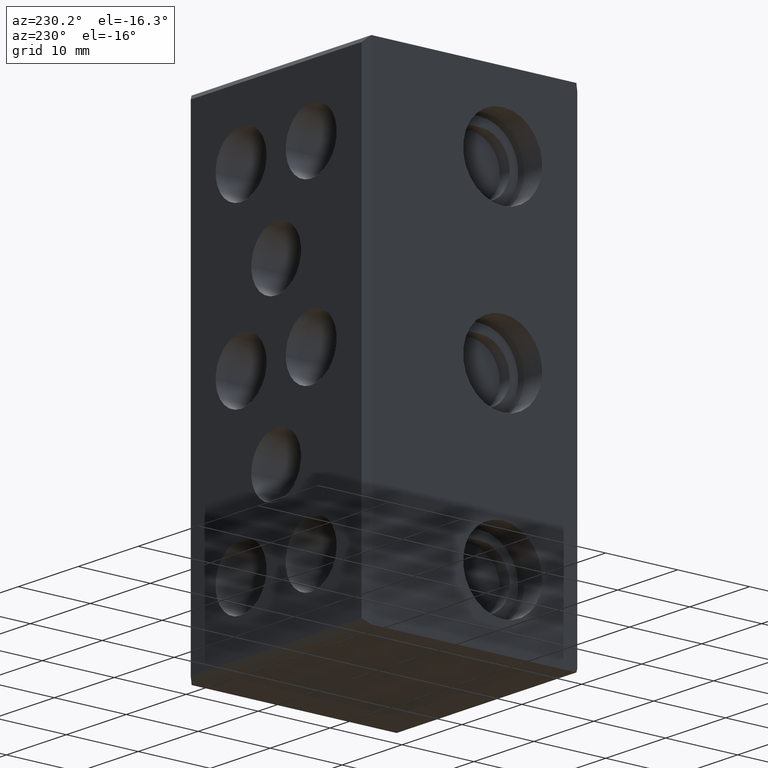
[diagram: clean part render]
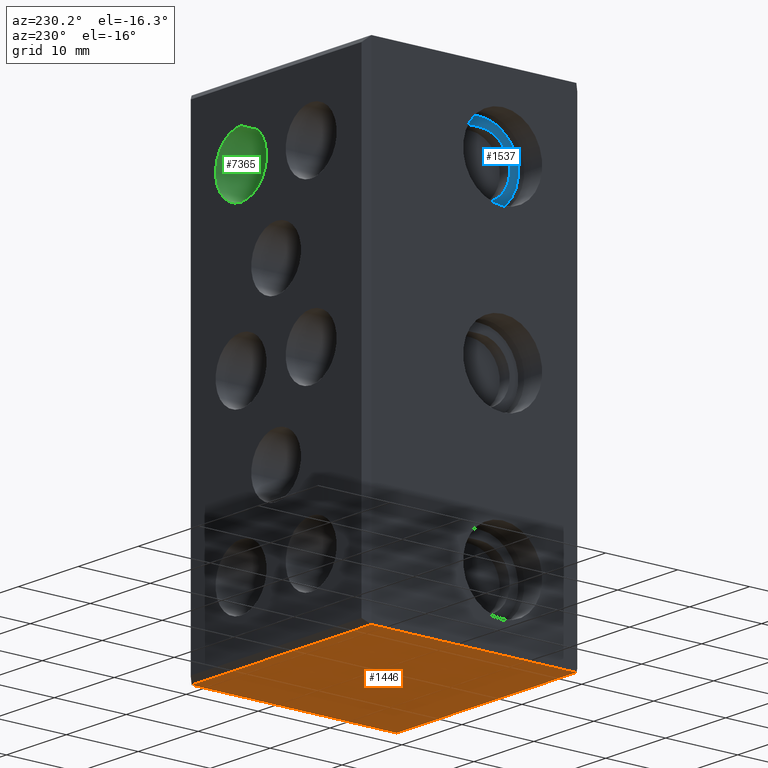
[diagram: same view with three faces highlighted in distinct colors, each labeled with its STEP entity id]
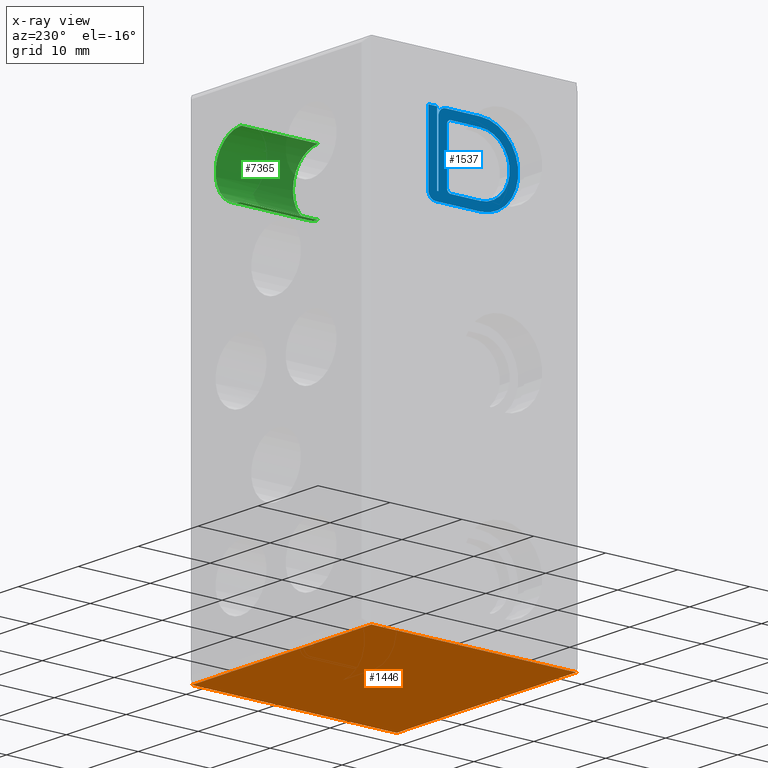
[diagram: x-ray of the same camera — body ghosted, the three highlighted faces saturated]
A machine part, auxiliary view with three faces highlighted in distinct colors.
The next image is the same camera in x-ray (body ghosted, the three faces saturated) — at least one of them is partly hidden behind the body in this view.
Their STEP definitions:

[orange] entity #1446 — the highlighted planar face has unit normal (0, 0, 1).
#1093 = CARTESIAN_POINT ( 'NONE',  ( -8.951284751764104900E-016, 29.25000000000000000, -1.409462824231156100E-014 ) ) ;
#1095 = CARTESIAN_POINT ( 'NONE',  ( 3.388131789017098400E-017, 0.7500000000000006700, 2.710505431213756200E-017 ) ) ;
#1109 = CARTESIAN_POINT ( 'NONE',  ( 30.00000000000000400, 0.7500000000000021100, -1.334923924872790200E-015 ) ) ;
#1112 = CARTESIAN_POINT ( 'NONE',  ( 30.00000000000000400, 29.25000000000000000, -1.924458856161770400E-014 ) ) ;
#1446 = ADVANCED_FACE ( 'NONE', ( #2818 ), #2847, .F. ) ;
#1693 = EDGE_CURVE ( 'NONE', #9193, #9179, #1929, .T. ) ;
#1753 = EDGE_CURVE ( 'NONE', #9178, #9193, #2157, .T. ) ;
#1797 = EDGE_CURVE ( 'NONE', #9184, #9179, #2265, .T. ) ;
#1808 = EDGE_CURVE ( 'NONE', #9178, #9184, #2322, .T. ) ;
#1929 = LINE ( 'NONE', #1931, #8693 ) ;
#1931 = CARTESIAN_POINT ( 'NONE',  ( 0.0000000000000000000, 29.25000000000000000, 0.0000000000000000000 ) ) ;
#1972 = DIRECTION ( 'NONE',  ( -1.000000000000000000, -0.0000000000000000000, 0.0000000000000000000 ) ) ;
#2152 = CARTESIAN_POINT ( 'NONE',  ( 30.00000000000000000, 30.00000000000000000, 0.0000000000000000000 ) ) ;
#2157 = LINE ( 'NONE', #2152, #7718 ) ;
#2159 = DIRECTION ( 'NONE',  ( -0.0000000000000000000, 1.000000000000000000, 0.0000000000000000000 ) ) ;
#2256 = CARTESIAN_POINT ( 'NONE',  ( 0.0000000000000000000, 30.00000000000000000, 0.0000000000000000000 ) ) ;
#2265 = LINE ( 'NONE', #2256, #7789 ) ;
#2274 = DIRECTION ( 'NONE',  ( 0.0000000000000000000, 1.000000000000000000, 0.0000000000000000000 ) ) ;
#2307 = CARTESIAN_POINT ( 'NONE',  ( 8.033683002406635800E-015, 0.7500000000000007800, -1.084202172485504400E-016 ) ) ;
#2314 = DIRECTION ( 'NONE',  ( -1.000000000000000000, -0.0000000000000000000, -0.0000000000000000000 ) ) ;
#2322 = LINE ( 'NONE', #2307, #7786 ) ;
#2815 = DIRECTION ( 'NONE',  ( 1.000000000000000000, 0.0000000000000000000, -0.0000000000000000000 ) ) ;
#2818 = FACE_OUTER_BOUND ( 'NONE', #4356, .T. ) ;
#2820 = DIRECTION ( 'NONE',  ( 0.0000000000000000000, 0.0000000000000000000, 1.000000000000000000 ) ) ;
#2847 = PLANE ( 'NONE',  #6781 ) ;
#2848 = CARTESIAN_POINT ( 'NONE',  ( 0.0000000000000000000, 30.00000000000000000, 0.0000000000000000000 ) ) ;
#4356 = EDGE_LOOP ( 'NONE', ( #5586, #5564, #5565, #5483 ) ) ;
#5483 = ORIENTED_EDGE ( 'NONE', *, *, #1753, .F. ) ;
#5564 = ORIENTED_EDGE ( 'NONE', *, *, #1797, .T. ) ;
#5565 = ORIENTED_EDGE ( 'NONE', *, *, #1693, .F. ) ;
#5586 = ORIENTED_EDGE ( 'NONE', *, *, #1808, .T. ) ;
#6781 = AXIS2_PLACEMENT_3D ( 'NONE', #2848, #2820, #2815 ) ;
#7718 = VECTOR ( 'NONE', #2159, 1000.000000000000000 ) ;
#7786 = VECTOR ( 'NONE', #2314, 1000.000000000000000 ) ;
#7789 = VECTOR ( 'NONE', #2274, 1000.000000000000000 ) ;
#8693 = VECTOR ( 'NONE', #1972, 1000.000000000000000 ) ;
#9178 = VERTEX_POINT ( 'NONE', #1109 ) ;
#9179 = VERTEX_POINT ( 'NONE', #1093 ) ;
#9184 = VERTEX_POINT ( 'NONE', #1095 ) ;
#9193 = VERTEX_POINT ( 'NONE', #1112 ) ;

[blue] entity #1537 — the highlighted planar face has unit normal (1, 0, -0).
#235 = EDGE_CURVE ( 'NONE', #9266, #9223, #3739, .T. ) ;
#1149 = CARTESIAN_POINT ( 'NONE',  ( 3.750000000000173200, 11.00000000000000000, 51.39999999999999900 ) ) ;
#1159 = CARTESIAN_POINT ( 'NONE',  ( 3.750000000000173200, 15.60000000000000300, 59.10000000000000900 ) ) ;
#1163 = CARTESIAN_POINT ( 'NONE',  ( 3.750000000000173200, 15.10000000000000000, 59.60000000000000900 ) ) ;
#1170 = CARTESIAN_POINT ( 'NONE',  ( 3.750000000000173200, 17.19999999999999900, 50.20000000000001000 ) ) ;
#1172 = CARTESIAN_POINT ( 'NONE',  ( 3.750000000000173200, 15.10000000000000300, 51.40000000000000600 ) ) ;
#1173 = CARTESIAN_POINT ( 'NONE',  ( 3.750000000000173200, 11.00000000000000000, 60.80000000000001100 ) ) ;
#1186 = CARTESIAN_POINT ( 'NONE',  ( 3.750000000000173200, 18.19999999999999900, 51.20000000000001000 ) ) ;
#1187 = CARTESIAN_POINT ( 'NONE',  ( 3.750000000000173200, 15.80000000000000100, 60.80000000000000400 ) ) ;
#1188 = CARTESIAN_POINT ( 'NONE',  ( 3.750000000000173200, 11.00000000000000000, 59.60000000000000100 ) ) ;
#1191 = CARTESIAN_POINT ( 'NONE',  ( 3.750000000000173200, 18.19999999999999900, 60.80000000000000400 ) ) ;
#1202 = CARTESIAN_POINT ( 'NONE',  ( 3.750000000000173200, 11.00000000000000000, 50.19999999999999600 ) ) ;
#1205 = CARTESIAN_POINT ( 'NONE',  ( 3.750000000000173200, 15.60000000000000300, 51.90000000000000600 ) ) ;
#1249 = CARTESIAN_POINT ( 'NONE',  ( 3.750000000000173200, 16.80000000000000100, 59.80000000000000400 ) ) ;
#1257 = CARTESIAN_POINT ( 'NONE',  ( 3.750000000000173200, 17.00000000000000000, 60.80000000000000400 ) ) ;
#1262 = CARTESIAN_POINT ( 'NONE',  ( 3.750000000000173200, 16.80000000000000100, 51.39999999999999900 ) ) ;
#1263 = CARTESIAN_POINT ( 'NONE',  ( 3.750000000000173200, 17.00000000000000000, 51.39999999999999900 ) ) ;
#1537 = ADVANCED_FACE ( 'NONE', ( #3276, #3255 ), #3282, .F. ) ;
#1771 = EDGE_CURVE ( 'NONE', #9223, #9257, #7706, .T. ) ;
#1778 = EDGE_CURVE ( 'NONE', #9224, #9259, #2184, .T. ) ;
#1779 = EDGE_CURVE ( 'NONE', #9258, #9235, #2203, .T. ) ;
#1825 = EDGE_CURVE ( 'NONE', #9274, #9273, #2354, .T. ) ;
#1832 = EDGE_CURVE ( 'NONE', #9263, #9275, #2374, .T. ) ;
#1846 = EDGE_CURVE ( 'NONE', #9248, #9244, #2403, .T. ) ;
#1848 = EDGE_CURVE ( 'NONE', #9275, #9274, #2390, .T. ) ;
#1849 = EDGE_CURVE ( 'NONE', #9241, #9224, #7872, .T. ) ;
#1853 = EDGE_CURVE ( 'NONE', #9244, #9266, #7862, .T. ) ;
#1855 = EDGE_CURVE ( 'NONE', #9268, #9241, #2435, .T. ) ;
#1858 = EDGE_CURVE ( 'NONE', #9235, #9268, #7861, .T. ) ;
#1860 = EDGE_CURVE ( 'NONE', #9272, #9248, #7852, .T. ) ;
#1861 = EDGE_CURVE ( 'NONE', #9257, #9263, #2461, .T. ) ;
#1864 = EDGE_CURVE ( 'NONE', #9273, #9272, #2505, .T. ) ;
#1869 = EDGE_CURVE ( 'NONE', #9259, #9258, #7843, .T. ) ;
#2184 = LINE ( 'NONE', #2216, #7743 ) ;
#2189 = CARTESIAN_POINT ( 'NONE',  ( 3.750000000000173200, 17.19999999999999900, 51.20000000000001000 ) ) ;
#2190 = DIRECTION ( 'NONE',  ( 1.000000000000000000, 0.0000000000000000000, -1.224646799147353200E-016 ) ) ;
#2203 = LINE ( 'NONE', #2205, #7709 ) ;
#2205 = CARTESIAN_POINT ( 'NONE',  ( 3.750000000000173200, 11.00000000000000000, 51.39999999999999900 ) ) ;
#2206 = DIRECTION ( 'NONE',  ( 0.0000000000000000000, 1.000000000000000000, 1.692413147294444000E-015 ) ) ;
#2216 = CARTESIAN_POINT ( 'NONE',  ( 3.750000000000173200, 11.00000000000000000, 59.60000000000000100 ) ) ;
#2217 = DIRECTION ( 'NONE',  ( -0.0000000000000000000, -1.000000000000000000, -1.692413147294446200E-015 ) ) ;
#2224 = DIRECTION ( 'NONE',  ( 0.0000000000000000000, 0.0000000000000000000, -1.000000000000000000 ) ) ;
#2348 = CARTESIAN_POINT ( 'NONE',  ( 3.750000000000173200, 17.00000000000000000, 51.39999999999999900 ) ) ;
#2349 = CARTESIAN_POINT ( 'NONE',  ( 3.750000000000173200, 18.19999999999999900, 60.80000000000000400 ) ) ;
#2352 = DIRECTION ( 'NONE',  ( 0.0000000000000000000, -1.000000000000000000, 0.0000000000000000000 ) ) ;
#2354 = LINE ( 'NONE', #2348, #7803 ) ;
#2355 = DIRECTION ( 'NONE',  ( 0.0000000000000000000, -1.000000000000000000, 0.0000000000000000000 ) ) ;
#2374 = LINE ( 'NONE', #2349, #7806 ) ;
#2390 = LINE ( 'NONE', #2395, #7860 ) ;
#2394 = CARTESIAN_POINT ( 'NONE',  ( 3.750000000000173200, 15.80000000000000100, 60.80000000000000400 ) ) ;
#2395 = CARTESIAN_POINT ( 'NONE',  ( 3.750000000000173200, 17.00000000000000000, 60.80000000000000400 ) ) ;
#2400 = DIRECTION ( 'NONE',  ( 0.0000000000000000000, -1.000000000000000000, 1.445602896647338500E-015 ) ) ;
#2403 = LINE ( 'NONE', #2394, #7858 ) ;
#2428 = CARTESIAN_POINT ( 'NONE',  ( 3.750000000000173200, 18.19999999999999900, 51.20000000000001000 ) ) ;
#2431 = DIRECTION ( 'NONE',  ( 1.000000000000000000, 0.0000000000000000000, -1.224646799147353200E-016 ) ) ;
#2435 = LINE ( 'NONE', #2468, #7836 ) ;
#2436 = DIRECTION ( 'NONE',  ( 0.0000000000000000000, 0.0000000000000000000, 1.000000000000000000 ) ) ;
#2437 = DIRECTION ( 'NONE',  ( 0.0000000000000000000, 0.0000000000000000000, -1.000000000000000000 ) ) ;
#2439 = DIRECTION ( 'NONE',  ( 1.000000000000000000, 0.0000000000000000000, -1.224646799147353200E-016 ) ) ;
#2440 = DIRECTION ( 'NONE',  ( 0.0000000000000000000, 0.0000000000000000000, 1.000000000000000000 ) ) ;
#2445 = DIRECTION ( 'NONE',  ( -8.182657905550967200E-017, 0.0000000000000000000, -1.000000000000000000 ) ) ;
#2447 = CARTESIAN_POINT ( 'NONE',  ( 3.750000000000173200, 15.10000000000000100, 59.10000000000000900 ) ) ;
#2451 = CARTESIAN_POINT ( 'NONE',  ( 3.750000000000173200, 15.10000000000000100, 51.90000000000000600 ) ) ;
#2453 = DIRECTION ( 'NONE',  ( 0.0000000000000000000, 0.0000000000000000000, -1.000000000000000000 ) ) ;
#2456 = DIRECTION ( 'NONE',  ( 0.0000000000000000000, 0.0000000000000000000, -1.000000000000000000 ) ) ;
#2461 = LINE ( 'NONE', #2428, #7825 ) ;
#2463 = DIRECTION ( 'NONE',  ( 1.000000000000000000, 0.0000000000000000000, -1.224646799147353200E-016 ) ) ;
#2466 = CARTESIAN_POINT ( 'NONE',  ( 3.750000000000173200, 15.80000000000000100, 59.80000000000000400 ) ) ;
#2467 = DIRECTION ( 'NONE',  ( 0.0000000000000000000, 0.0000000000000000000, -1.000000000000000000 ) ) ;
#2468 = CARTESIAN_POINT ( 'NONE',  ( 3.750000000000173200, 15.60000000000000300, 51.90000000000000600 ) ) ;
#2469 = CARTESIAN_POINT ( 'NONE',  ( 3.750000000000173200, 11.00000000000000000, 55.50000000000000000 ) ) ;
#2470 = DIRECTION ( 'NONE',  ( 1.000000000000000000, 0.0000000000000000000, -1.224646799147353200E-016 ) ) ;
#2494 = DIRECTION ( 'NONE',  ( 1.000000000000000000, 0.0000000000000000000, -1.224646799147353200E-016 ) ) ;
#2495 = DIRECTION ( 'NONE',  ( -1.057758217059028900E-016, 0.0000000000000000000, -1.000000000000000000 ) ) ;
#2499 = DIRECTION ( 'NONE',  ( 0.0000000000000000000, 0.0000000000000000000, 1.000000000000000000 ) ) ;
#2504 = CARTESIAN_POINT ( 'NONE',  ( 3.750000000000173200, 16.80000000000000100, 51.39999999999999900 ) ) ;
#2505 = LINE ( 'NONE', #2504, #7866 ) ;
#2509 = CARTESIAN_POINT ( 'NONE',  ( 3.750000000000173200, 11.00000000000000000, 55.50000000000000000 ) ) ;
#3255 = FACE_OUTER_BOUND ( 'NONE', #4329, .T. ) ;
#3256 = DIRECTION ( 'NONE',  ( -1.224646799147353200E-016, 0.0000000000000000000, -1.000000000000000000 ) ) ;
#3276 = FACE_BOUND ( 'NONE', #4347, .T. ) ;
#3282 = PLANE ( 'NONE',  #8492 ) ;
#3283 = DIRECTION ( 'NONE',  ( 1.000000000000000000, 0.0000000000000000000, -1.224646799147353200E-016 ) ) ;
#3293 = CARTESIAN_POINT ( 'NONE',  ( 3.750000000000173200, 15.80000000000000100, 59.80000000000000400 ) ) ;
#3739 = LINE ( 'NONE', #3778, #6788 ) ;
#3778 = CARTESIAN_POINT ( 'NONE',  ( 3.750000000000173200, 11.00000000000000000, 50.19999999999999600 ) ) ;
#3795 = DIRECTION ( 'NONE',  ( 0.0000000000000000000, 1.000000000000000000, 2.238352872228138100E-015 ) ) ;
#4329 = EDGE_LOOP ( 'NONE', ( #5774, #5748, #5767, #5768, #5702, #5795, #5689, #5771, #5765, #5772 ) ) ;
#4347 = EDGE_LOOP ( 'NONE', ( #5730, #5784, #5797, #5757, #5780, #5779 ) ) ;
#5689 = ORIENTED_EDGE ( 'NONE', *, *, #1853, .F. ) ;
#5702 = ORIENTED_EDGE ( 'NONE', *, *, #1771, .F. ) ;
#5730 = ORIENTED_EDGE ( 'NONE', *, *, #1779, .T. ) ;
#5748 = ORIENTED_EDGE ( 'NONE', *, *, #1848, .F. ) ;
#5757 = ORIENTED_EDGE ( 'NONE', *, *, #1849, .T. ) ;
#5765 = ORIENTED_EDGE ( 'NONE', *, *, #1860, .F. ) ;
#5767 = ORIENTED_EDGE ( 'NONE', *, *, #1832, .F. ) ;
#5768 = ORIENTED_EDGE ( 'NONE', *, *, #1861, .F. ) ;
#5771 = ORIENTED_EDGE ( 'NONE', *, *, #1846, .F. ) ;
#5772 = ORIENTED_EDGE ( 'NONE', *, *, #1864, .F. ) ;
#5774 = ORIENTED_EDGE ( 'NONE', *, *, #1825, .F. ) ;
#5779 = ORIENTED_EDGE ( 'NONE', *, *, #1869, .T. ) ;
#5780 = ORIENTED_EDGE ( 'NONE', *, *, #1778, .T. ) ;
#5784 = ORIENTED_EDGE ( 'NONE', *, *, #1858, .T. ) ;
#5795 = ORIENTED_EDGE ( 'NONE', *, *, #235, .F. ) ;
#5797 = ORIENTED_EDGE ( 'NONE', *, *, #1855, .T. ) ;
#6788 = VECTOR ( 'NONE', #3795, 1000.000000000000000 ) ;
#7706 = CIRCLE ( 'NONE', #7729, 1.000000000000000900 ) ;
#7709 = VECTOR ( 'NONE', #2206, 1000.000000000000000 ) ;
#7729 = AXIS2_PLACEMENT_3D ( 'NONE', #2189, #2190, #2224 ) ;
#7743 = VECTOR ( 'NONE', #2217, 1000.000000000000000 ) ;
#7803 = VECTOR ( 'NONE', #2352, 1000.000000000000000 ) ;
#7806 = VECTOR ( 'NONE', #2355, 1000.000000000000000 ) ;
#7825 = VECTOR ( 'NONE', #2440, 1000.000000000000000 ) ;
#7826 = AXIS2_PLACEMENT_3D ( 'NONE', #2469, #2463, #2445 ) ;
#7836 = VECTOR ( 'NONE', #2436, 1000.000000000000000 ) ;
#7843 = CIRCLE ( 'NONE', #7869, 4.099999999999999600 ) ;
#7852 = CIRCLE ( 'NONE', #7868, 1.000000000000000900 ) ;
#7858 = VECTOR ( 'NONE', #2400, 1000.000000000000000 ) ;
#7859 = AXIS2_PLACEMENT_3D ( 'NONE', #2447, #2431, #2437 ) ;
#7860 = VECTOR ( 'NONE', #2456, 1000.000000000000000 ) ;
#7861 = CIRCLE ( 'NONE', #7864, 0.5000000000000004400 ) ;
#7862 = CIRCLE ( 'NONE', #7826, 5.300000000000006000 ) ;
#7864 = AXIS2_PLACEMENT_3D ( 'NONE', #2451, #2439, #2453 ) ;
#7866 = VECTOR ( 'NONE', #2499, 1000.000000000000000 ) ;
#7868 = AXIS2_PLACEMENT_3D ( 'NONE', #2466, #2470, #2467 ) ;
#7869 = AXIS2_PLACEMENT_3D ( 'NONE', #2509, #2494, #2495 ) ;
#7872 = CIRCLE ( 'NONE', #7859, 0.5000000000000004400 ) ;
#8492 = AXIS2_PLACEMENT_3D ( 'NONE', #3293, #3283, #3256 ) ;
#9223 = VERTEX_POINT ( 'NONE', #1170 ) ;
#9224 = VERTEX_POINT ( 'NONE', #1163 ) ;
#9235 = VERTEX_POINT ( 'NONE', #1172 ) ;
#9241 = VERTEX_POINT ( 'NONE', #1159 ) ;
#9244 = VERTEX_POINT ( 'NONE', #1173 ) ;
#9248 = VERTEX_POINT ( 'NONE', #1187 ) ;
#9257 = VERTEX_POINT ( 'NONE', #1186 ) ;
#9258 = VERTEX_POINT ( 'NONE', #1149 ) ;
#9259 = VERTEX_POINT ( 'NONE', #1188 ) ;
#9263 = VERTEX_POINT ( 'NONE', #1191 ) ;
#9266 = VERTEX_POINT ( 'NONE', #1202 ) ;
#9268 = VERTEX_POINT ( 'NONE', #1205 ) ;
#9272 = VERTEX_POINT ( 'NONE', #1249 ) ;
#9273 = VERTEX_POINT ( 'NONE', #1262 ) ;
#9274 = VERTEX_POINT ( 'NONE', #1263 ) ;
#9275 = VERTEX_POINT ( 'NONE', #1257 ) ;

[green] entity #7365 — the highlighted cylindrical surface (partial cylindrical patch) has radius 4.25 mm, axis along (0, 1, 0).
#50 = EDGE_CURVE ( 'NONE', #9394, #9380, #4563, .T. ) ;
#51 = EDGE_CURVE ( 'NONE', #9355, #9343, #4572, .T. ) ;
#1058 = CARTESIAN_POINT ( 'NONE',  ( 24.60000000000017200, 19.24999999999999600, 57.80000000000000400 ) ) ;
#1068 = CARTESIAN_POINT ( 'NONE',  ( 24.60000000000017200, 19.24999999999999600, 53.79999999999999700 ) ) ;
#1277 = CARTESIAN_POINT ( 'NONE',  ( 20.85000000000017200, 30.00000000000000000, 51.55000000000000400 ) ) ;
#1300 = CARTESIAN_POINT ( 'NONE',  ( 20.85000000000017200, 19.24999999999999600, 51.55000000000000400 ) ) ;
#1313 = CARTESIAN_POINT ( 'NONE',  ( 20.85000000000017200, 19.24999999999999600, 60.04999999999999700 ) ) ;
#1332 = CARTESIAN_POINT ( 'NONE',  ( 20.85000000000017200, 30.00000000000000000, 60.04999999999999700 ) ) ;
#1612 = EDGE_CURVE ( 'NONE', #9111, #9394, #8561, .T. ) ;
#1631 = EDGE_CURVE ( 'NONE', #9355, #9126, #8624, .T. ) ;
#1637 = EDGE_CURVE ( 'NONE', #9380, #9343, #8653, .T. ) ;
#1689 = EDGE_CURVE ( 'NONE', #9111, #9126, #8670, .T. ) ;
#1920 = DIRECTION ( 'NONE',  ( -0.0000000000000000000, -1.000000000000000000, -0.0000000000000000000 ) ) ;
#1932 = CARTESIAN_POINT ( 'NONE',  ( 20.85000000000017200, 19.24999999999999600, 55.80000000000000400 ) ) ;
#1947 = DIRECTION ( 'NONE',  ( -5.714383214982427900E-015, 0.0000000000000000000, 1.000000000000000000 ) ) ;
#3541 = DIRECTION ( 'NONE',  ( 0.0000000000000000000, 0.0000000000000000000, 1.000000000000000000 ) ) ;
#3576 = CARTESIAN_POINT ( 'NONE',  ( 20.85000000000017200, 19.24999999999999600, 55.80000000000000400 ) ) ;
#3577 = DIRECTION ( 'NONE',  ( 0.0000000000000000000, 1.000000000000000000, 0.0000000000000000000 ) ) ;
#3624 = DIRECTION ( 'NONE',  ( 0.0000000000000000000, 1.000000000000000000, 0.0000000000000000000 ) ) ;
#3631 = DIRECTION ( 'NONE',  ( -0.0000000000000000000, -1.000000000000000000, -0.0000000000000000000 ) ) ;
#3634 = DIRECTION ( 'NONE',  ( 0.0000000000000000000, 0.0000000000000000000, 1.000000000000000000 ) ) ;
#3637 = CARTESIAN_POINT ( 'NONE',  ( 20.85000000000017200, 19.24999999999999600, 55.80000000000000400 ) ) ;
#3642 = DIRECTION ( 'NONE',  ( 0.0000000000000000000, 0.0000000000000000000, 1.000000000000000000 ) ) ;
#3660 = CARTESIAN_POINT ( 'NONE',  ( 20.85000000000017200, 30.00000000000000000, 55.80000000000000400 ) ) ;
#4285 = EDGE_LOOP ( 'NONE', ( #9496, #9564, #9487, #9517, #9556, #9557 ) ) ;
#4563 = LINE ( 'NONE', #4598, #6903 ) ;
#4572 = LINE ( 'NONE', #4593, #6904 ) ;
#4577 = DIRECTION ( 'NONE',  ( 0.0000000000000000000, 1.000000000000000000, 0.0000000000000000000 ) ) ;
#4588 = DIRECTION ( 'NONE',  ( 0.0000000000000000000, 1.000000000000000000, 0.0000000000000000000 ) ) ;
#4593 = CARTESIAN_POINT ( 'NONE',  ( 20.85000000000017200, 15.00000000000000000, 60.04999999999999700 ) ) ;
#4598 = CARTESIAN_POINT ( 'NONE',  ( 20.85000000000017200, 15.00000000000000000, 51.55000000000000400 ) ) ;
#6903 = VECTOR ( 'NONE', #4577, 1000.000000000000000 ) ;
#6904 = VECTOR ( 'NONE', #4588, 1000.000000000000000 ) ;
#7365 = ADVANCED_FACE ( 'NONE', ( #9844 ), #9835, .F. ) ;
#8233 = AXIS2_PLACEMENT_3D ( 'NONE', #9858, #9833, #9866 ) ;
#8561 = CIRCLE ( 'NONE', #8569, 4.249999999999996400 ) ;
#8569 = AXIS2_PLACEMENT_3D ( 'NONE', #3576, #3577, #3541 ) ;
#8624 = CIRCLE ( 'NONE', #8655, 4.249999999999996400 ) ;
#8632 = AXIS2_PLACEMENT_3D ( 'NONE', #3660, #3631, #3642 ) ;
#8653 = CIRCLE ( 'NONE', #8632, 4.249999999999996400 ) ;
#8655 = AXIS2_PLACEMENT_3D ( 'NONE', #3637, #3624, #3634 ) ;
#8670 = CIRCLE ( 'NONE', #8701, 4.249999999999996400 ) ;
#8701 = AXIS2_PLACEMENT_3D ( 'NONE', #1932, #1920, #1947 ) ;
#9111 = VERTEX_POINT ( 'NONE', #1068 ) ;
#9126 = VERTEX_POINT ( 'NONE', #1058 ) ;
#9343 = VERTEX_POINT ( 'NONE', #1332 ) ;
#9355 = VERTEX_POINT ( 'NONE', #1313 ) ;
#9380 = VERTEX_POINT ( 'NONE', #1277 ) ;
#9394 = VERTEX_POINT ( 'NONE', #1300 ) ;
#9487 = ORIENTED_EDGE ( 'NONE', *, *, #1689, .T. ) ;
#9496 = ORIENTED_EDGE ( 'NONE', *, *, #50, .F. ) ;
#9517 = ORIENTED_EDGE ( 'NONE', *, *, #1631, .F. ) ;
#9556 = ORIENTED_EDGE ( 'NONE', *, *, #51, .T. ) ;
#9557 = ORIENTED_EDGE ( 'NONE', *, *, #1637, .F. ) ;
#9564 = ORIENTED_EDGE ( 'NONE', *, *, #1612, .F. ) ;
#9833 = DIRECTION ( 'NONE',  ( 0.0000000000000000000, 1.000000000000000000, 0.0000000000000000000 ) ) ;
#9835 = CYLINDRICAL_SURFACE ( 'NONE', #8233, 4.249999999999996400 ) ;
#9844 = FACE_OUTER_BOUND ( 'NONE', #4285, .T. ) ;
#9858 = CARTESIAN_POINT ( 'NONE',  ( 20.85000000000017200, 15.00000000000000000, 55.80000000000000400 ) ) ;
#9866 = DIRECTION ( 'NONE',  ( 0.0000000000000000000, 0.0000000000000000000, 1.000000000000000000 ) ) ;